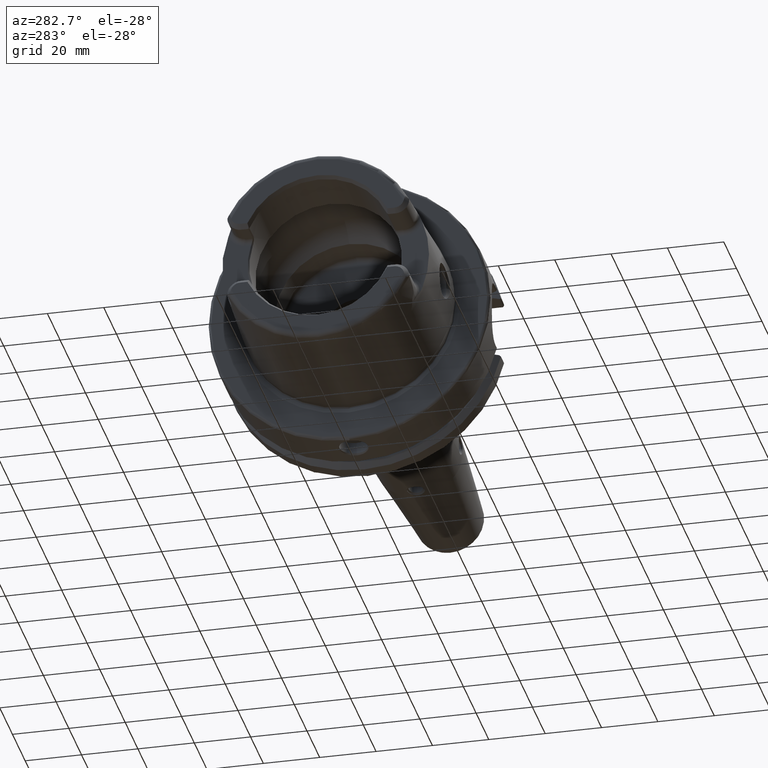
[diagram: clean part render]
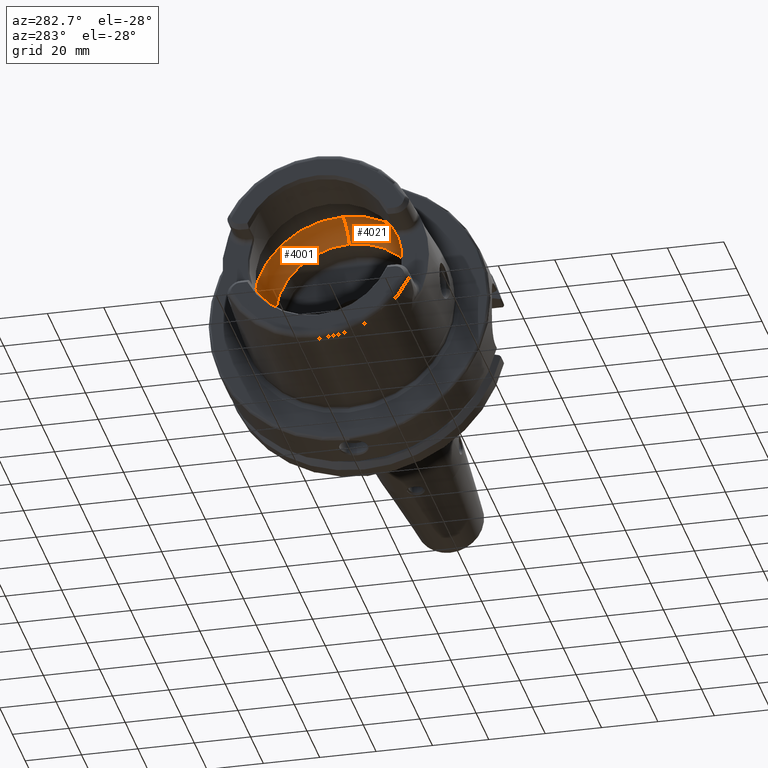
[diagram: same view with one multi-face feature highlighted, each face labeled with its STEP entity id]
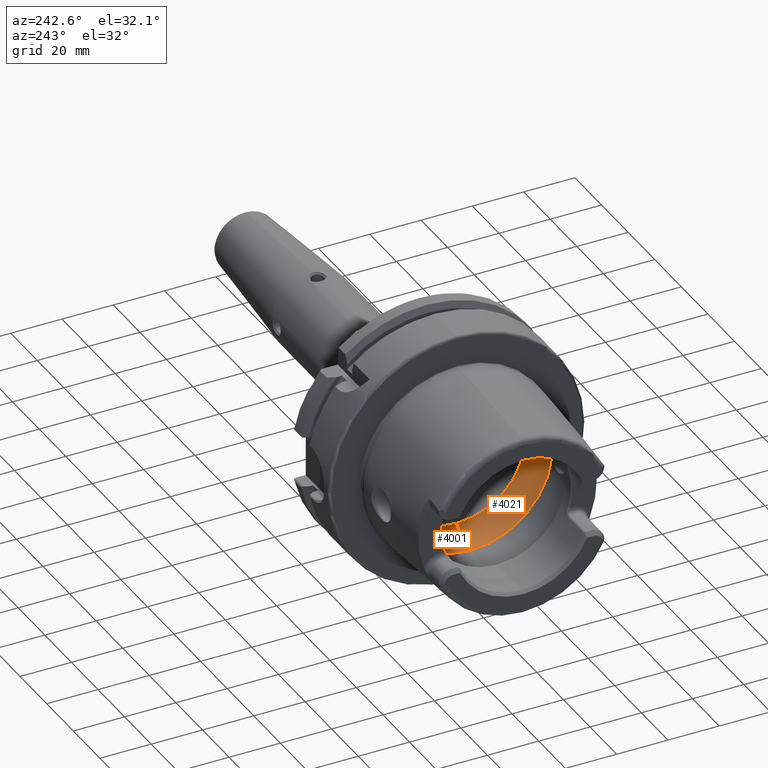
[diagram: same view with one multi-face feature highlighted, each face labeled with its STEP entity id]
A machine part, auxiliary view. The highlighted faces form ONE feature: a constant-radius fillet chain: 2 tangent blend faces with common blend radius 12 mm. The faces share edges in the B-rep.
A second angle (auxiliary view) of the same feature is appended — it is thin or edge-on in the first view.
Their STEP definitions:
[1] entity #4001 (Torus):
#405=CARTESIAN_POINT('',(-9.7468E0,3.184612797556E1,2.898946318923E0));
#445=CARTESIAN_POINT('',(-9.7468E0,3.184612797556E1,-2.898946318923E0));
#446=CARTESIAN_POINT('',(-9.585712343905E0,3.187270030095E1,-2.607038300663E0));
#447=CARTESIAN_POINT('',(-9.311377205430E0,3.191387814764E1,-1.994511035790E0));
#448=CARTESIAN_POINT('',(-9.057685371867E0,3.194743520433E1,-1.015473792980E0));
#449=CARTESIAN_POINT('',(-9.E0,3.195454052960E1,-3.391717034725E-1));
#450=CARTESIAN_POINT('',(-9.E0,3.195454052960E1,0.E0));
#452=CARTESIAN_POINT('',(-9.E0,3.195454052960E1,0.E0));
#453=CARTESIAN_POINT('',(-9.E0,3.195454052960E1,3.391639792420E-1));
#454=CARTESIAN_POINT('',(-9.057686112376E0,3.194743503400E1,1.015454128513E0));
#455=CARTESIAN_POINT('',(-9.311344303356E0,3.191388266561E1,1.994413875809E0));
#456=CARTESIAN_POINT('',(-9.585691055221E0,3.187270381264E1,2.606999723297E0));
#457=CARTESIAN_POINT('',(-9.7468E0,3.184612797556E1,2.898946318923E0));
#459=CARTESIAN_POINT('',(-9.7468E0,0.E0,0.E0));
#460=DIRECTION('',(1.E0,0.E0,0.E0));
#461=DIRECTION('',(0.E0,9.958823615032E-1,9.065496151292E-2));
#462=AXIS2_PLACEMENT_3D('',#459,#460,#461);
#464=CARTESIAN_POINT('',(-9.7468E0,0.E0,1.9977801E1));
#465=DIRECTION('',(0.E0,1.E0,0.E0));
#466=DIRECTION('',(0.E0,0.E0,1.E0));
#467=AXIS2_PLACEMENT_3D('',#464,#465,#466);
#469=CARTESIAN_POINT('',(3.259811553909E-1,0.E0,0.E0));
#470=DIRECTION('',(-1.E0,0.E0,0.E0));
#471=DIRECTION('',(0.E0,0.E0,1.E0));
#472=AXIS2_PLACEMENT_3D('',#469,#470,#471);
#474=CARTESIAN_POINT('',(-9.7468E0,0.E0,0.E0));
#475=DIRECTION('',(1.E0,0.E0,0.E0));
#476=DIRECTION('',(0.E0,0.E0,-1.E0));
#477=AXIS2_PLACEMENT_3D('',#474,#475,#476);
#491=CARTESIAN_POINT('',(-9.7468E0,0.E0,-1.9977801E1));
#492=DIRECTION('',(0.E0,-1.E0,0.E0));
#493=DIRECTION('',(0.E0,0.E0,-1.E0));
#494=AXIS2_PLACEMENT_3D('',#491,#492,#493);
#3038=CARTESIAN_POINT('',(3.259811553909E-1,0.E0,-2.65E1));
#3040=VERTEX_POINT('',#3038);
#3042=CARTESIAN_POINT('',(3.259811553909E-1,0.E0,2.65E1));
#3043=VERTEX_POINT('',#3042);
#3073=CARTESIAN_POINT('',(-9.7468E0,0.E0,-3.1977801E1));
#3074=VERTEX_POINT('',#3073);
#3075=CARTESIAN_POINT('',(-9.7468E0,0.E0,3.1977801E1));
#3076=VERTEX_POINT('',#3075);
#3083=CARTESIAN_POINT('',(-9.E0,3.195454052960E1,0.E0));
#3084=VERTEX_POINT('',#3083);
#3085=VERTEX_POINT('',#445);
#3093=VERTEX_POINT('',#405);
#3984=CARTESIAN_POINT('',(-9.7468E0,0.E0,0.E0));
#3985=DIRECTION('',(1.E0,0.E0,0.E0));
#3986=DIRECTION('',(0.E0,0.E0,1.E0));
#3987=AXIS2_PLACEMENT_3D('',#3984,#3985,#3986);
#3988=TOROIDAL_SURFACE('',#3987,1.9977801E1,1.2E1);
#3989=ORIENTED_EDGE('',*,*,#3935,.T.);
#3990=ORIENTED_EDGE('',*,*,#3978,.T.);
#3991=ORIENTED_EDGE('',*,*,#3919,.T.);
#3993=ORIENTED_EDGE('',*,*,#3992,.T.);
#3995=ORIENTED_EDGE('',*,*,#3994,.T.);
#3997=ORIENTED_EDGE('',*,*,#3996,.F.);
#3998=ORIENTED_EDGE('',*,*,#3912,.T.);
#3999=EDGE_LOOP('',(#3989,#3990,#3991,#3993,#3995,#3997,#3998));
#4000=FACE_OUTER_BOUND('',#3999,.F.);
#4001=ADVANCED_FACE('',(#4000),#3988,.F.);
#451=B_SPLINE_CURVE_WITH_KNOTS('',3,(#445,#446,#447,#448,#449,#450),
.UNSPECIFIED.,.F.,.F.,(4,1,1,4),(0.E0,3.333333333333E-1,6.666666666667E-1,1.E0),
.UNSPECIFIED.);
#458=B_SPLINE_CURVE_WITH_KNOTS('',3,(#452,#453,#454,#455,#456,#457),
.UNSPECIFIED.,.F.,.F.,(4,1,1,4),(0.E0,3.333333333333E-1,6.666666666667E-1,1.E0),
.UNSPECIFIED.);
#463=CIRCLE('',#462,3.1977801E1);
#468=CIRCLE('',#467,1.2E1);
#473=CIRCLE('',#472,2.65E1);
#478=CIRCLE('',#477,3.1977801E1);
#495=CIRCLE('',#494,1.2E1);
#3912=EDGE_CURVE('',#3074,#3085,#478,.T.);
#3919=EDGE_CURVE('',#3093,#3076,#463,.T.);
#3935=EDGE_CURVE('',#3085,#3084,#451,.T.);
#3978=EDGE_CURVE('',#3084,#3093,#458,.T.);
#3992=EDGE_CURVE('',#3076,#3043,#468,.T.);
#3994=EDGE_CURVE('',#3043,#3040,#473,.T.);
#3996=EDGE_CURVE('',#3074,#3040,#495,.T.);
[2] entity #4021 (Torus):
#464=CARTESIAN_POINT('',(-9.7468E0,0.E0,1.9977801E1));
#465=DIRECTION('',(0.E0,1.E0,0.E0));
#466=DIRECTION('',(0.E0,0.E0,1.E0));
#467=AXIS2_PLACEMENT_3D('',#464,#465,#466);
#479=CARTESIAN_POINT('',(-9.E0,-3.195454052960E1,0.E0));
#480=CARTESIAN_POINT('',(-9.E0,-3.195454052960E1,-3.391756010718E-1));
#481=CARTESIAN_POINT('',(-9.057686695634E0,-3.194743504191E1,
-1.015482848611E0));
#482=CARTESIAN_POINT('',(-9.311380443112E0,-3.191387769348E1,
-1.994519605048E0));
#483=CARTESIAN_POINT('',(-9.585714224752E0,-3.187269999069E1,
-2.607041708959E0));
#484=CARTESIAN_POINT('',(-9.7468E0,-3.184612797556E1,-2.898946318923E0));
#486=CARTESIAN_POINT('',(-9.7468E0,0.E0,0.E0));
#487=DIRECTION('',(1.E0,0.E0,0.E0));
#488=DIRECTION('',(0.E0,-9.958823615032E-1,-9.065496151292E-2));
#489=AXIS2_PLACEMENT_3D('',#486,#487,#488);
#491=CARTESIAN_POINT('',(-9.7468E0,0.E0,-1.9977801E1));
#492=DIRECTION('',(0.E0,-1.E0,0.E0));
#493=DIRECTION('',(0.E0,0.E0,-1.E0));
#494=AXIS2_PLACEMENT_3D('',#491,#492,#493);
#496=CARTESIAN_POINT('',(3.259811553909E-1,0.E0,0.E0));
#497=DIRECTION('',(-1.E0,0.E0,0.E0));
#498=DIRECTION('',(0.E0,0.E0,-1.E0));
#499=AXIS2_PLACEMENT_3D('',#496,#497,#498);
#501=CARTESIAN_POINT('',(-9.7468E0,0.E0,0.E0));
#502=DIRECTION('',(1.E0,0.E0,0.E0));
#503=DIRECTION('',(0.E0,0.E0,1.E0));
#504=AXIS2_PLACEMENT_3D('',#501,#502,#503);
#506=CARTESIAN_POINT('',(-9.7468E0,-3.184612797556E1,2.898946318923E0));
#507=CARTESIAN_POINT('',(-9.585689302070E0,-3.187270410183E1,2.606996546400E0));
#508=CARTESIAN_POINT('',(-9.311341285587E0,-3.191388308891E1,1.994405888284E0));
#509=CARTESIAN_POINT('',(-9.057684878308E0,-3.194743518543E1,1.015445686589E0));
#510=CARTESIAN_POINT('',(-9.E0,-3.195454052960E1,3.391603457747E-1));
#511=CARTESIAN_POINT('',(-9.E0,-3.195454052960E1,0.E0));
#3038=CARTESIAN_POINT('',(3.259811553909E-1,0.E0,-2.65E1));
#3040=VERTEX_POINT('',#3038);
#3042=CARTESIAN_POINT('',(3.259811553909E-1,0.E0,2.65E1));
#3043=VERTEX_POINT('',#3042);
#3071=VERTEX_POINT('',#479);
#3072=VERTEX_POINT('',#484);
#3073=CARTESIAN_POINT('',(-9.7468E0,0.E0,-3.1977801E1));
#3074=VERTEX_POINT('',#3073);
#3075=CARTESIAN_POINT('',(-9.7468E0,0.E0,3.1977801E1));
#3076=VERTEX_POINT('',#3075);
#3077=CARTESIAN_POINT('',(-9.7468E0,-3.184612797556E1,2.898946318923E0));
#3078=VERTEX_POINT('',#3077);
#4002=CARTESIAN_POINT('',(-9.7468E0,0.E0,0.E0));
#4003=DIRECTION('',(1.E0,0.E0,0.E0));
#4004=DIRECTION('',(0.E0,0.E0,1.E0));
#4005=AXIS2_PLACEMENT_3D('',#4002,#4003,#4004);
#4006=TOROIDAL_SURFACE('',#4005,1.9977801E1,1.2E1);
#4008=ORIENTED_EDGE('',*,*,#4007,.T.);
#4010=ORIENTED_EDGE('',*,*,#4009,.T.);
#4011=ORIENTED_EDGE('',*,*,#3996,.T.);
#4013=ORIENTED_EDGE('',*,*,#4012,.T.);
#4014=ORIENTED_EDGE('',*,*,#3992,.F.);
#4016=ORIENTED_EDGE('',*,*,#4015,.T.);
#4018=ORIENTED_EDGE('',*,*,#4017,.T.);
#4019=EDGE_LOOP('',(#4008,#4010,#4011,#4013,#4014,#4016,#4018));
#4020=FACE_OUTER_BOUND('',#4019,.F.);
#4021=ADVANCED_FACE('',(#4020),#4006,.F.);
#468=CIRCLE('',#467,1.2E1);
#485=B_SPLINE_CURVE_WITH_KNOTS('',3,(#479,#480,#481,#482,#483,#484),
.UNSPECIFIED.,.F.,.F.,(4,1,1,4),(0.E0,3.333333333333E-1,6.666666666667E-1,1.E0),
.UNSPECIFIED.);
#490=CIRCLE('',#489,3.1977801E1);
#495=CIRCLE('',#494,1.2E1);
#500=CIRCLE('',#499,2.65E1);
#505=CIRCLE('',#504,3.1977801E1);
#512=B_SPLINE_CURVE_WITH_KNOTS('',3,(#506,#507,#508,#509,#510,#511),
.UNSPECIFIED.,.F.,.F.,(4,1,1,4),(0.E0,3.333333333333E-1,6.666666666667E-1,1.E0),
.UNSPECIFIED.);
#3992=EDGE_CURVE('',#3076,#3043,#468,.T.);
#3996=EDGE_CURVE('',#3074,#3040,#495,.T.);
#4007=EDGE_CURVE('',#3071,#3072,#485,.T.);
#4009=EDGE_CURVE('',#3072,#3074,#490,.T.);
#4012=EDGE_CURVE('',#3040,#3043,#500,.T.);
#4015=EDGE_CURVE('',#3076,#3078,#505,.T.);
#4017=EDGE_CURVE('',#3078,#3071,#512,.T.);